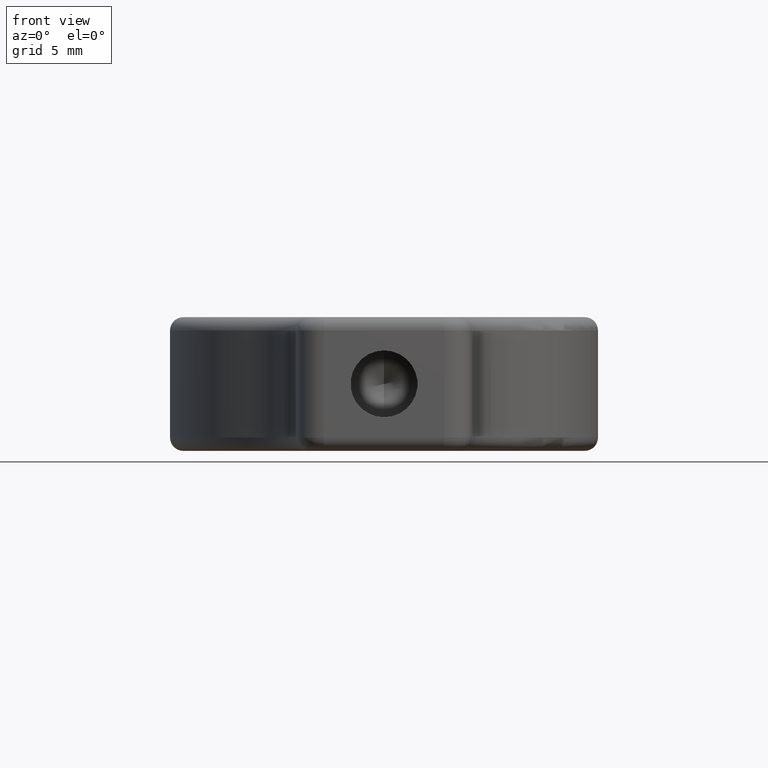
[diagram: clean part render]
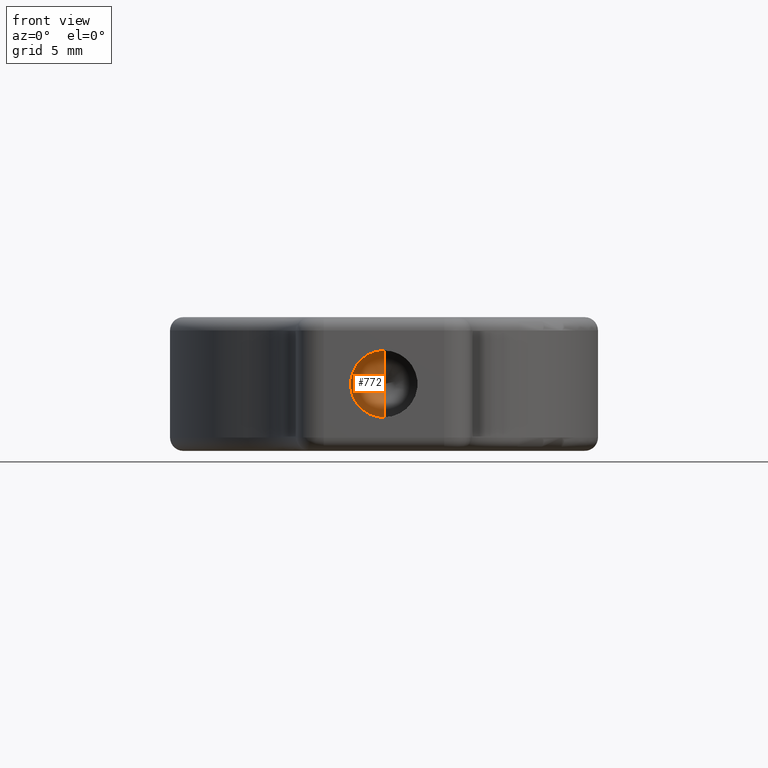
[diagram: same view with one face highlighted and labeled with its STEP entity id]
A machine part, front view. The second image highlights one B-rep face of the part: STEP entity #772.
In plain terms, the highlighted conical surface has half-angle 59 deg.
Its self-contained STEP definition (entity closure, byte-faithful):
#23 = LINE ( 'NONE', #1377, #1550 ) ;
#52 = DIRECTION ( 'NONE',  ( 2.419439951480632800E-017, 0.0000000000000000000, 1.000000000000000000 ) ) ;
#179 = CARTESIAN_POINT ( 'NONE',  ( 1.279413681080443200E-015, -15.69999999999999200, -2.499999999999995100 ) ) ;
#321 = DIRECTION ( 'NONE',  ( 3.503382635730904500E-017, -0.5150380749100559300, 0.8571673007021113300 ) ) ;
#329 = ORIENTED_EDGE ( 'NONE', *, *, #2527, .F. ) ;
#443 = CARTESIAN_POINT ( 'NONE',  ( 1.218927682293427400E-015, -15.69999999999999200, -4.999999999999990200 ) ) ;
#512 = VERTEX_POINT ( 'NONE', #1506 ) ;
#626 = VERTEX_POINT ( 'NONE', #1343 ) ;
#772 = ADVANCED_FACE ( 'NONE', ( #1090 ), #2389, .F. ) ;
#801 = VECTOR ( 'NONE', #2059, 1000.000000000000000 ) ;
#1052 = CARTESIAN_POINT ( 'NONE',  ( 1.218927682293427400E-015, -15.69999999999999200, -4.999999999999990200 ) ) ;
#1072 = CARTESIAN_POINT ( 'NONE',  ( 8.522799837195739500E-016, -15.69999999999999200, -7.499999999999985800 ) ) ;
#1081 = DIRECTION ( 'NONE',  ( 2.775557561562891400E-017, -1.000000000000000000, 5.210476164773282500E-031 ) ) ;
#1090 = FACE_OUTER_BOUND ( 'NONE', #1507, .T. ) ;
#1117 = VERTEX_POINT ( 'NONE', #179 ) ;
#1299 = EDGE_CURVE ( 'NONE', #1117, #626, #1656, .T. ) ;
#1343 = CARTESIAN_POINT ( 'NONE',  ( 8.522799837195739500E-016, -15.69999999999999200, -7.499999999999985800 ) ) ;
#1377 = CARTESIAN_POINT ( 'NONE',  ( 1.279413681080443200E-015, -15.69999999999999200, -2.499999999999995100 ) ) ;
#1506 = CARTESIAN_POINT ( 'NONE',  ( 3.259661137147938900E-015, -14.19784845243108900, -4.999999999999990200 ) ) ;
#1507 = EDGE_LOOP ( 'NONE', ( #329, #1802, #2570 ) ) ;
#1508 = EDGE_CURVE ( 'NONE', #512, #1117, #23, .T. ) ;
#1550 = VECTOR ( 'NONE', #321, 1000.000000000000000 ) ;
#1656 = CIRCLE ( 'NONE', #1971, 2.499999999999995100 ) ;
#1802 = ORIENTED_EDGE ( 'NONE', *, *, #1508, .T. ) ;
#1857 = DIRECTION ( 'NONE',  ( 2.775557561562891400E-017, -1.000000000000000000, 5.210476164773282500E-031 ) ) ;
#1971 = AXIS2_PLACEMENT_3D ( 'NONE', #1052, #1081, #52 ) ;
#2059 = DIRECTION ( 'NONE',  ( -1.114161890049827900E-016, -0.5150380749100559300, -0.8571673007021113300 ) ) ;
#2259 = LINE ( 'NONE', #1072, #801 ) ;
#2281 = DIRECTION ( 'NONE',  ( 2.419439951480632800E-017, 0.0000000000000000000, 1.000000000000000000 ) ) ;
#2389 = CONICAL_SURFACE ( 'NONE', #2486, 2.499999999999995100, 1.029744258676653000 ) ;
#2486 = AXIS2_PLACEMENT_3D ( 'NONE', #443, #1857, #2281 ) ;
#2527 = EDGE_CURVE ( 'NONE', #512, #626, #2259, .T. ) ;
#2570 = ORIENTED_EDGE ( 'NONE', *, *, #1299, .T. ) ;